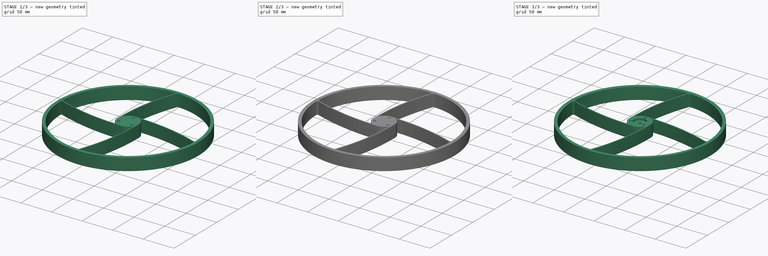
[diagram: build sequence overview — one tinted view per stage of 3, left to right]
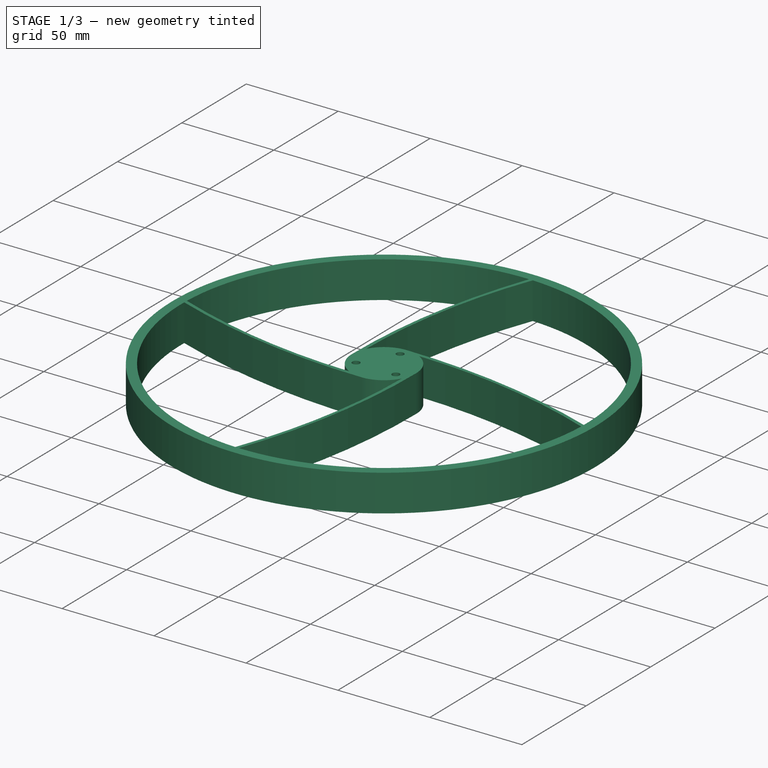
[diagram: stage 1 of 3 — iso view after this stage's code; geometry added in this stage tinted green]
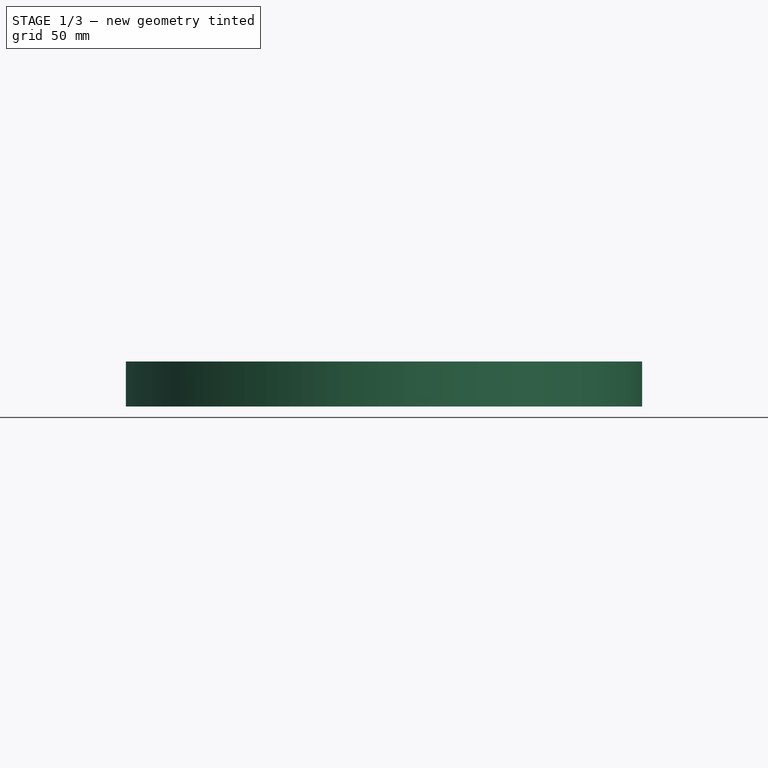
[diagram: stage 1 of 3 — front view after this stage's code; geometry added in this stage tinted green]
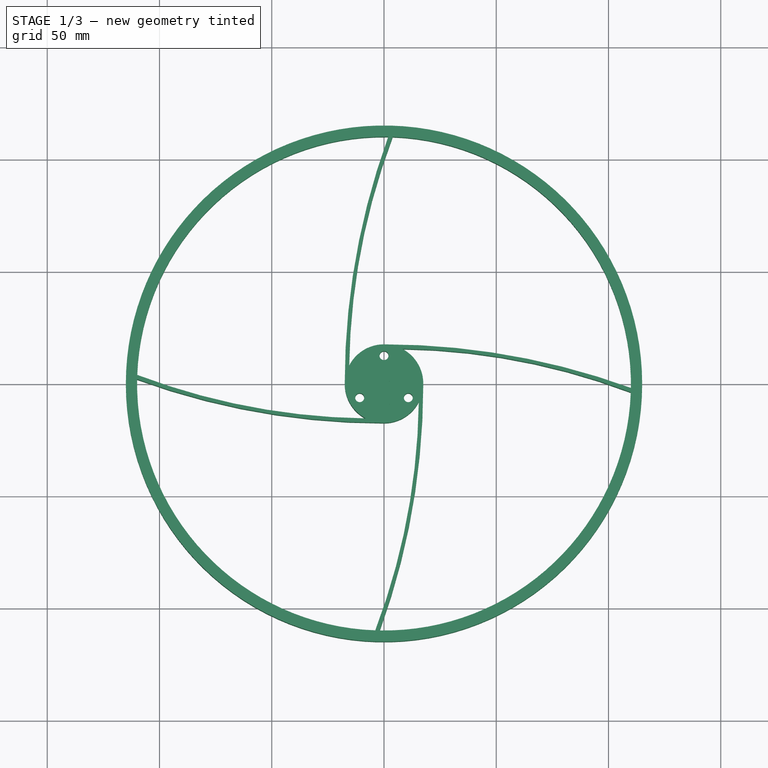
[diagram: stage 1 of 3 — top view after this stage's code; geometry added in this stage tinted green]
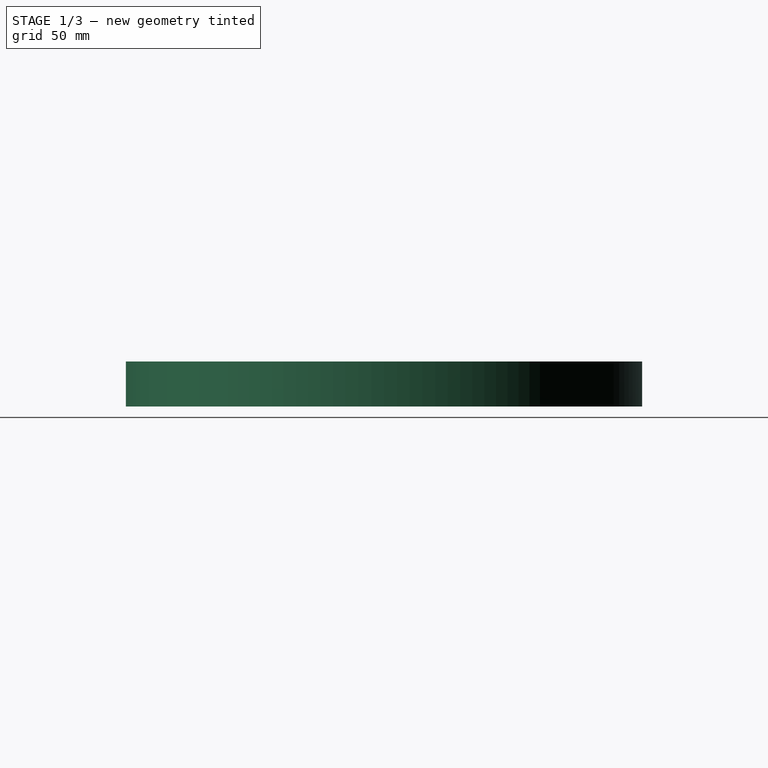
[diagram: stage 1 of 3 — right view after this stage's code; geometry added in this stage tinted green]
FCSTD DOCUMENT  (FreeCAD 1.0R38641 +678 (Git))
Label: Pavouk
License: All rights reserved
LicenseURL: https://en.wikipedia.org/wiki/All_rights_reserved
objects: Part::Fillet×2, Sketcher::SketchObject×1, Part::Extrusion×1, Part::Cylinder×1, Part::Cut×1
note: 7 computed .brp shape members not serialized (recipe doc carries the construction recipe); baked Part::Feature solids carry a one-line shape summary decoded from their .brp

FEATURE [Sketcher::SketchObject] Sketch
  ArcFitTolerance = 1e-06
  FullyConstrained = false
  MakeInternals = false
  sketch-geometry (27):
    g0: Circle [constr] CenterX=0 CenterY=0 CenterZ=0 NormalX=0 NormalY=0 NormalZ=1 AngleXU=0 Radius=110
    g1: Circle CenterX=0 CenterY=0 CenterZ=0 NormalX=0 NormalY=0 NormalZ=1 AngleXU=0 Radius=115
    g2: Circle [constr] CenterX=0 CenterY=0 CenterZ=0 NormalX=0 NormalY=0 NormalZ=1 AngleXU=0 Radius=17.5
    g3: LineSegment [constr] StartX=0 StartY=0 StartZ=0 EndX=0 EndY=21.7053 EndZ=0
    g4: ArcOfCircle CenterX=0 CenterY=-304.071 CenterZ=0 NormalX=0 NormalY=0 NormalZ=1 AngleXU=0 Radius=321.571 StartAngle=1.22173 EndAngle=1.5708
    g5: ArcOfCircle CenterX=4.03768 CenterY=-282.885 CenterZ=0 NormalX=0 NormalY=0 NormalZ=1 AngleXU=0 Radius=298.412 StartAngle=1.20804 EndAngle=1.5571
    g6: ArcOfCircle CenterX=-304.071 CenterY=0 CenterZ=0 NormalX=0 NormalY=0 NormalZ=1 AngleXU=0 Radius=321.571 StartAngle=5.93412 EndAngle=6.28319
    g7: ArcOfCircle CenterX=-282.885 CenterY=-4.03768 CenterZ=0 NormalX=0 NormalY=0 NormalZ=1 AngleXU=0 Radius=298.412 StartAngle=5.92043 EndAngle=6.26949
    g8: ArcOfCircle CenterX=0 CenterY=304.071 CenterZ=0 NormalX=0 NormalY=0 NormalZ=1 AngleXU=0 Radius=321.571 StartAngle=4.36332 EndAngle=4.71239
    g9: ArcOfCircle CenterX=-4.03768 CenterY=282.885 CenterZ=0 NormalX=0 NormalY=0 NormalZ=1 AngleXU=0 Radius=298.412 StartAngle=4.34963 EndAngle=4.69869
    g10: ArcOfCircle CenterX=282.885 CenterY=4.03768 CenterZ=0 NormalX=0 NormalY=0 NormalZ=1 AngleXU=0 Radius=298.412 StartAngle=2.77883 EndAngle=3.1279
    g11: ArcOfCircle CenterX=304.071 CenterY=0 CenterZ=0 NormalX=0 NormalY=0 NormalZ=1 AngleXU=0 Radius=321.571 StartAngle=2.79253 EndAngle=3.14159
    g12: ArcOfCircle CenterX=-5.5e-15 CenterY=8.7e-15 CenterZ=0 NormalX=0 NormalY=0 NormalZ=1 AngleXU=0 Radius=110 StartAngle=1.55359 EndAngle=3.1062
    g13: ArcOfCircle CenterX=-5.5e-15 CenterY=8.7e-15 CenterZ=0 NormalX=0 NormalY=0 NormalZ=1 AngleXU=0 Radius=110 StartAngle=6.26597 EndAngle=7.81859
    g14: ArcOfCircle CenterX=-2e-15 CenterY=2.8e-15 CenterZ=0 NormalX=0 NormalY=0 NormalZ=1 AngleXU=0 Radius=110 StartAngle=4.69518 EndAngle=6.24779
    g15: ArcOfCircle CenterX=-2e-15 CenterY=2.8e-15 CenterZ=0 NormalX=0 NormalY=0 NormalZ=1 AngleXU=0 Radius=110 StartAngle=3.12438 EndAngle=4.677
    g16: ArcOfCircle CenterX=8e-16 CenterY=1.7e-15 CenterZ=0 NormalX=0 NormalY=0 NormalZ=1 AngleXU=0 Radius=17.5 StartAngle=0 EndAngle=1.08803
    g17: ArcOfCircle CenterX=8e-16 CenterY=1.7e-15 CenterZ=0 NormalX=0 NormalY=0 NormalZ=1 AngleXU=0 Radius=17.5 StartAngle=4.71239 EndAngle=5.80042
    g18: ArcOfCircle CenterX=-7e-16 CenterY=-1e-16 CenterZ=0 NormalX=0 NormalY=0 NormalZ=1 AngleXU=0 Radius=17.5 StartAngle=3.14159 EndAngle=4.22962
    g19: ArcOfCircle CenterX=-7e-16 CenterY=-1e-16 CenterZ=0 NormalX=0 NormalY=0 NormalZ=1 AngleXU=0 Radius=17.5 StartAngle=1.5708 EndAngle=2.65883
    g20: Circle [constr] CenterX=0 CenterY=0 CenterZ=0 NormalX=0 NormalY=0 NormalZ=1 AngleXU=0 Radius=12.5
    g21: Circle CenterX=0 CenterY=12.5 CenterZ=0 NormalX=0 NormalY=0 NormalZ=1 AngleXU=0 Radius=2
    g22: Circle CenterX=10.8253 CenterY=-6.25 CenterZ=0 NormalX=0 NormalY=0 NormalZ=1 AngleXU=0 Radius=2
    g23: Circle CenterX=-10.8253 CenterY=-6.25 CenterZ=0 NormalX=0 NormalY=0 NormalZ=1 AngleXU=0 Radius=2
    g24: LineSegment [constr] StartX=0 StartY=0 StartZ=0 EndX=-20.5746 EndY=-11.8787 EndZ=0
    g25: LineSegment [constr] StartX=0 StartY=0 StartZ=0 EndX=25.8104 EndY=-14.9017 EndZ=0
    g26: Circle CenterX=0 CenterY=0 CenterZ=0 NormalX=0 NormalY=0 NormalZ=1 AngleXU=0 Radius=2.5
  constraints (81):
    c: Coincident(g0,g-1)
    c: Coincident(g1,g0)
    c: Coincident(g2,g0)
    c: Diameter(g1) = 230
    c: Diameter(g0) = 220
    c: Diameter(g2) = 35
    c: Coincident(g3,g0)
    c: Vertical(g3)
    c: PointOnObject(g4,g0)
    c: Tangent(g4,g2) = -1.5708
    c: Angle(g4) = 0.349066
    c: PointOnObject(g5,g2)
    c: PointOnObject(g5,g0)
    c: PointOnObject(g4,g3)
    c: Angle(g5) = 0.349066
    c: DistanceY(g5,g4) = 2
    c: Distance(g4,g5) = 2
    c: PointOnObject(g6,g0)
    c: PointOnObject(g7,g2)
    c: PointOnObject(g7,g0)
    c: PointOnObject(g8,g0)
    c: PointOnObject(g9,g2)
    c: PointOnObject(g9,g0)
    c: PointOnObject(g10,g2)
    c: PointOnObject(g10,g0)
    c: PointOnObject(g11,g0)
    c: Distance(g6,g7) = 2
    c: Distance(g8,g9) = 2
    c: Distance(g11,g10) = 2
    c: Tangent(g6,g2) = -1.5708
    c: PointOnObject(g6,g-1)
    c: PointOnObject(g8,g-2)
    c: Tangent(g8,g2) = -1.5708
    c: PointOnObject(g11,g-1)
    c: Tangent(g11,g2) = -1.5708
    c: Angle(g6) = 0.349066
    c: Angle(g7) = 0.349066
    c: DistanceX(g7,g6) = 2
    c: Angle(g8) = 0.349066
    c: Angle(g9) = 0.349066
    c: DistanceY(g8,g9) = 2
    c: Angle(g11) = 0.349066
    c: Angle(g10) = 0.349066
    c: DistanceX(g11,g10) = 2
    c: Coincident(g12,g9)
    c: Coincident(g11,g12)
    c: Coincident(g13,g12)
    c: Coincident(g13,g10)
    c: Coincident(g13,g4)
    c: Coincident(g15,g14)
    c: Coincident(g15,g7)
    c: Coincident(g15,g8)
    c: Coincident(g17,g16)
    c: Coincident(g17,g7)
    c: Coincident(g17,g8)
    c: Coincident(g19,g18)
    c: Coincident(g19,g10)
    c: Coincident(g19,g4)
    c: Coincident(g18,g11)
    c: Coincident(g18,g9)
    c: Coincident(g16,g5)
    c: Coincident(g6,g16)
    c: Coincident(g14,g5)
    c: Coincident(g14,g6)
    c: Coincident(g20,g0)
    c: PointOnObject(g21,g20)
    c: PointOnObject(g22,g20)
    c: PointOnObject(g23,g20)
    c: Coincident(g24,g0)
    c: Coincident(g25,g0)
    c: Angle(g3,g24) = 2.0944
    c: Angle(g25,g3) = 2.0944
    c: PointOnObject(g21,g3)
    c: PointOnObject(g22,g25)
    c: PointOnObject(g23,g24)
    c: Diameter(g21) = 4
    c: Diameter(g22) = 4
    c: Diameter(g23) = 4
    c: Coincident(g26,g0)
    c: Diameter(g26) = 5
    c: Diameter(g20) = 25
FEATURE [Part::Extrusion] Extrude
  Base = -> Sketch
  Dir = (0,0,1)
  DirMode = 2
  FaceMakerClass = Part::FaceMakerBullseye
  FaceMakerMode = 3
  LengthFwd = 20
  LengthRev = 0
  Solid = true
  Symmetric = false
FEATURE [Part::Cylinder] Cylinder  label="Válec"
  Angle = 360
  AttacherType = Attacher::AttachEngine3D
  FirstAngle = 0
  Height = 3
  Placement = pos=(0,0,17) rot=(0,0,1;0rad)
  Radius = 9.5
  SecondAngle = 0
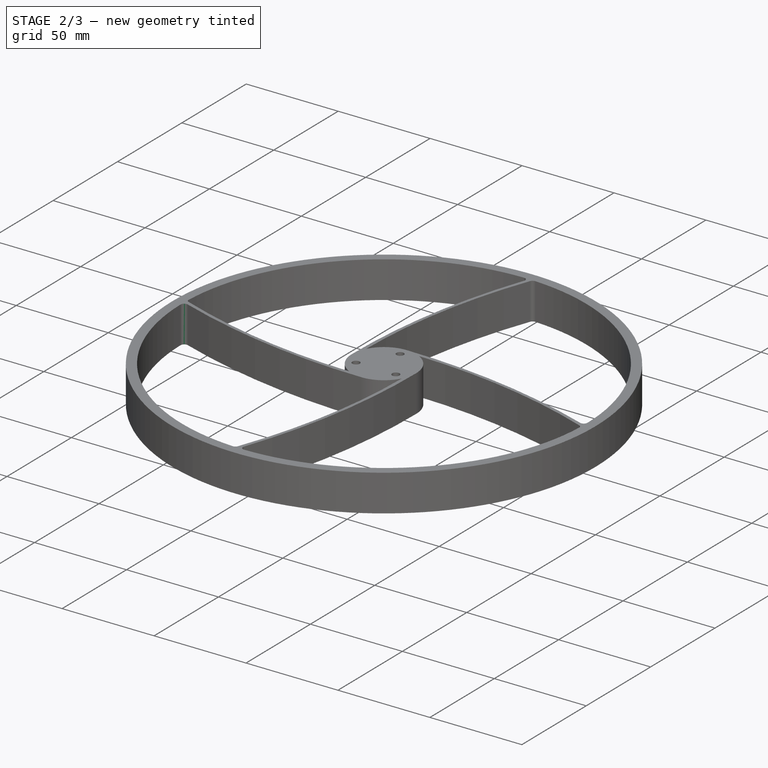
[diagram: stage 2 of 3 — iso view after this stage's code; geometry added in this stage tinted green]
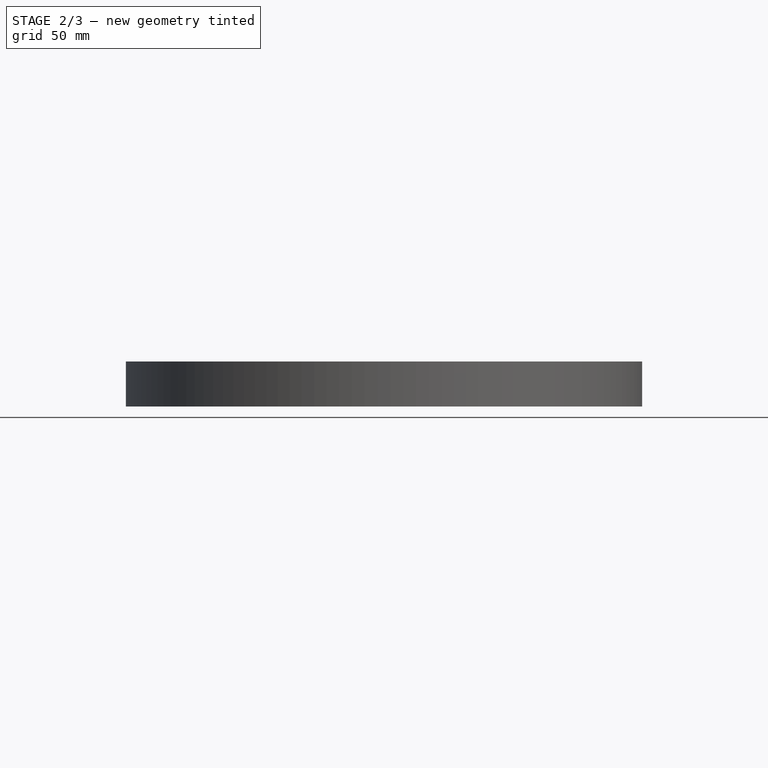
[diagram: stage 2 of 3 — front view after this stage's code; geometry added in this stage tinted green]
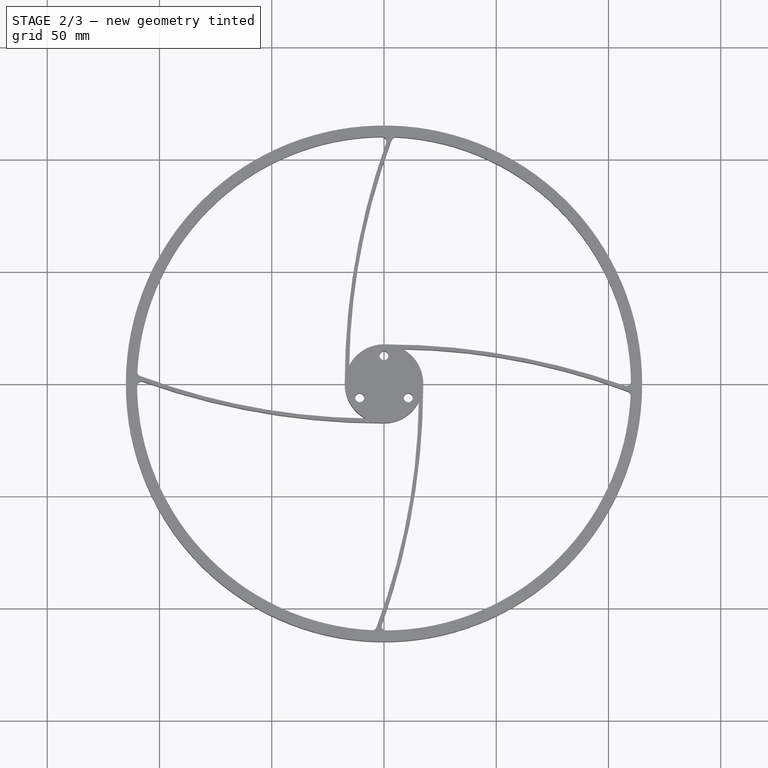
[diagram: stage 2 of 3 — top view after this stage's code; geometry added in this stage tinted green]
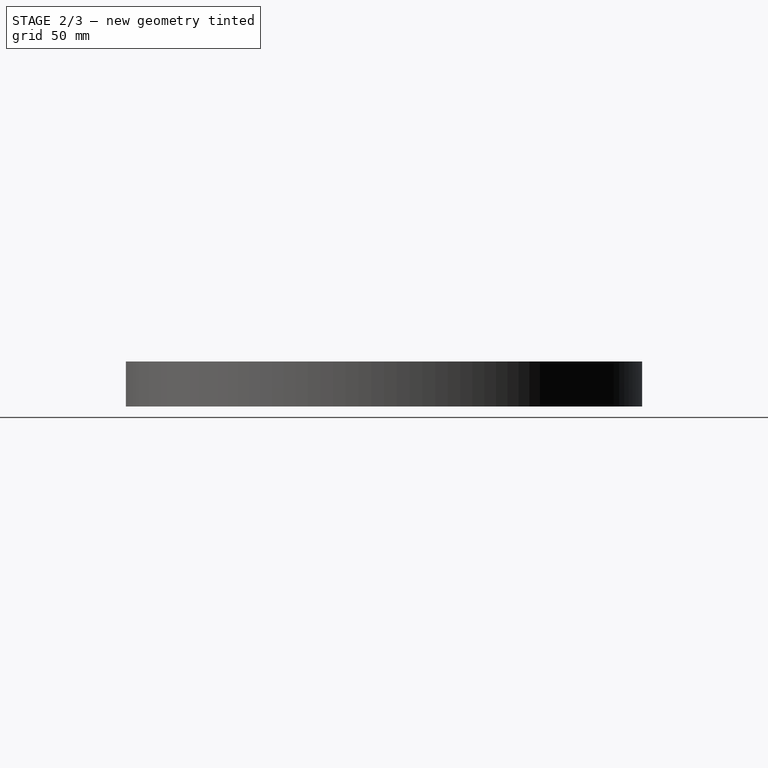
[diagram: stage 2 of 3 — right view after this stage's code; geometry added in this stage tinted green]
FEATURE [Part::Fillet] Fillet
  Base = -> Extrude
  EdgeLinks = -> Extrude [Edge4,Edge5,Edge16,Edge17,Edge28,Edge29,Edge40,Edge41]
  Edges = 8 edges r=2: [Edge4,Edge5,Edge16,Edge17,Edge28,Edge29,Edge40,Edge41]
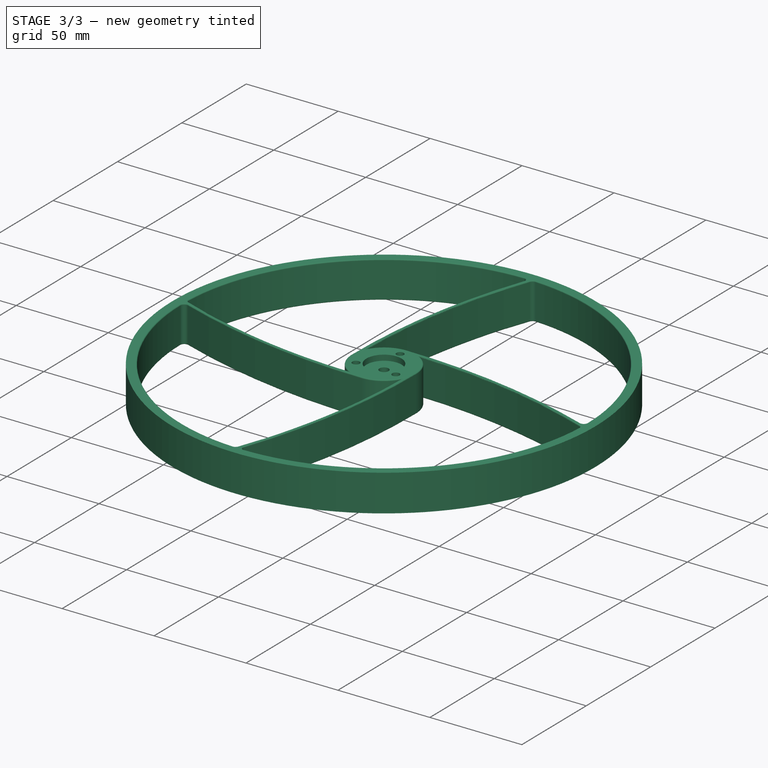
[diagram: stage 3 of 3 — iso view after this stage's code; geometry added in this stage tinted green]
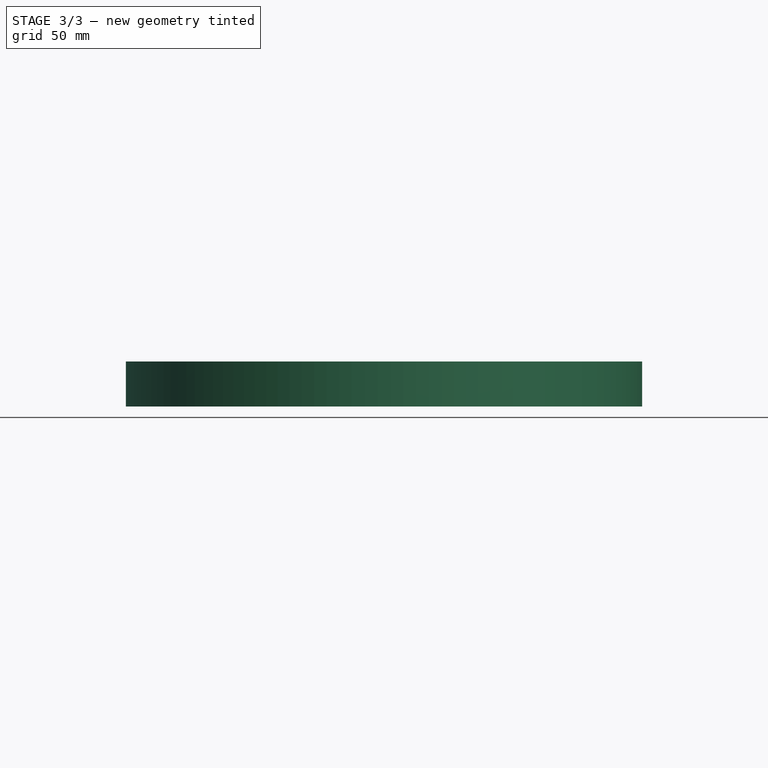
[diagram: stage 3 of 3 — front view after this stage's code; geometry added in this stage tinted green]
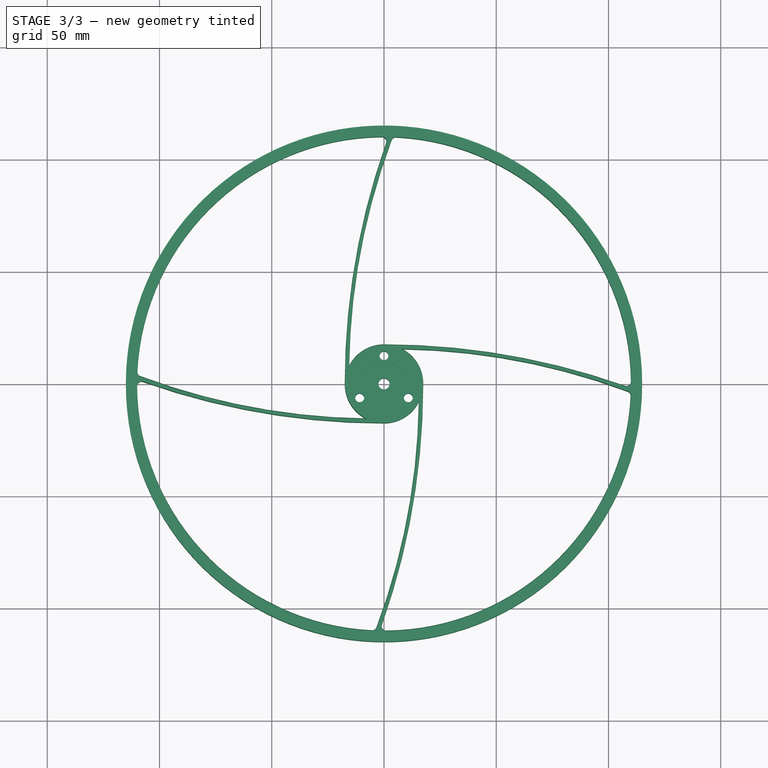
[diagram: stage 3 of 3 — top view after this stage's code; geometry added in this stage tinted green]
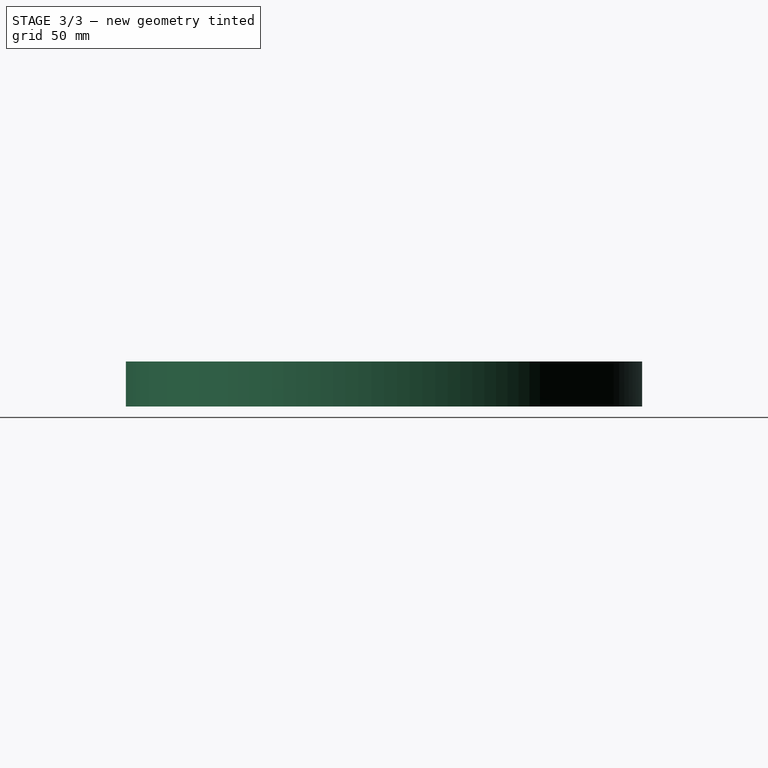
[diagram: stage 3 of 3 — right view after this stage's code; geometry added in this stage tinted green]
FEATURE [Part::Fillet] Fillet001
  Base = -> Fillet
  EdgeLinks = -> Fillet [Edge1,Edge4,Edge5,Edge6,Edge7,Edge8,Edge9,Edge15,Edge16,Edge17,Edge18,Edge19,Edge20,Edge21,Edge22,Edge23,Edge24,Edge25,Edge26,Edge27,Edge28,Edge29,Edge30,Edge31,Edge32,Edge34,Edge36,Edge37,Edge38,Edge39,Edge45,Edge46,Edge47,Edge48,Edge49,Edge50,Edge51,Edge52,Edge53,Edge54,+8 more]
  Edges = 48 edges r=0.5: [Edge1,Edge4,Edge5,Edge6,Edge7,Edge8,Edge9,Edge15,Edge16,Edge17,Edge18,Edge19,Edge20,Edge21,Edge22,Edge23,Edge24,Edge25,Edge26,Edge27,Edge28,Edge29,Edge30,Edge31,Edge32,Edge34,Edge36,Edge37,Edge38,Edge39,Edge45,Edge46,Edge47,Edge48,Edge49,Edge50,Edge51,Edge52,Edge53,Edge54,Edge55,Edge56,Edge57,+5 more]
FEATURE [Part::Cut] Cut
  Base = -> Fillet001
  Tool = -> Cylinder
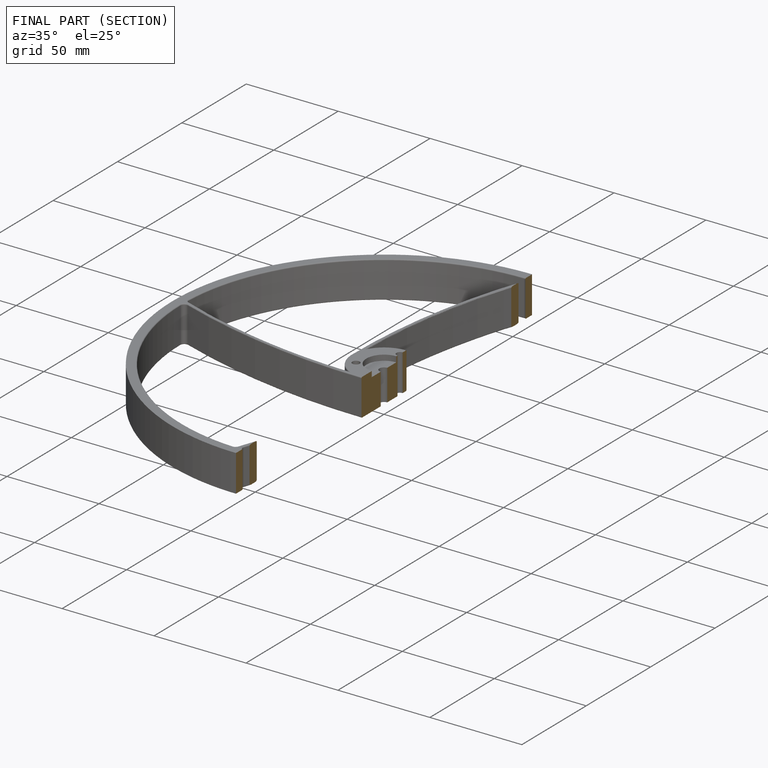
[diagram: finished part — half-section view (interior)]
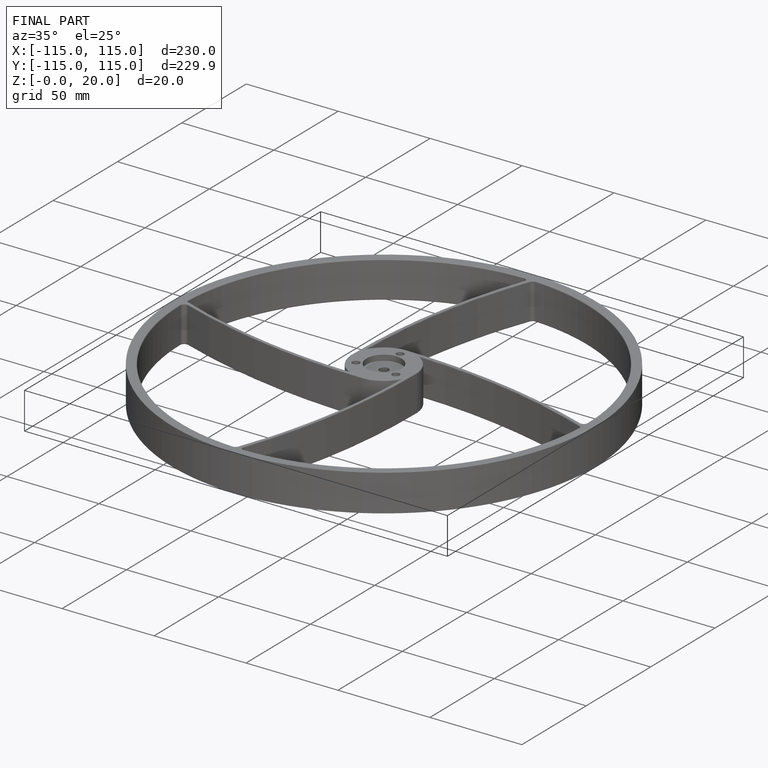
[diagram: finished part — iso view with bounding-box wireframe]
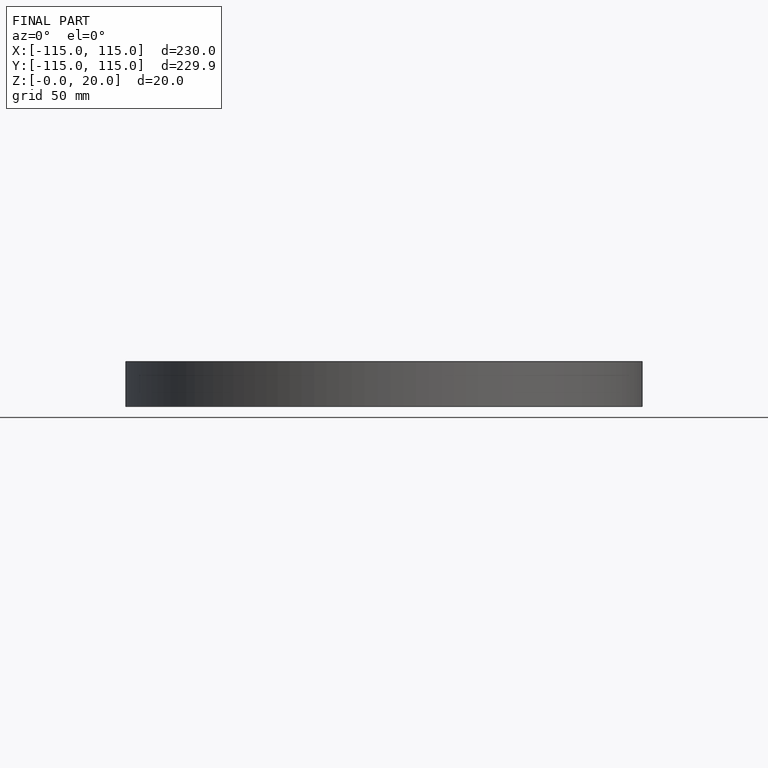
[diagram: finished part — front view with bounding-box wireframe]
